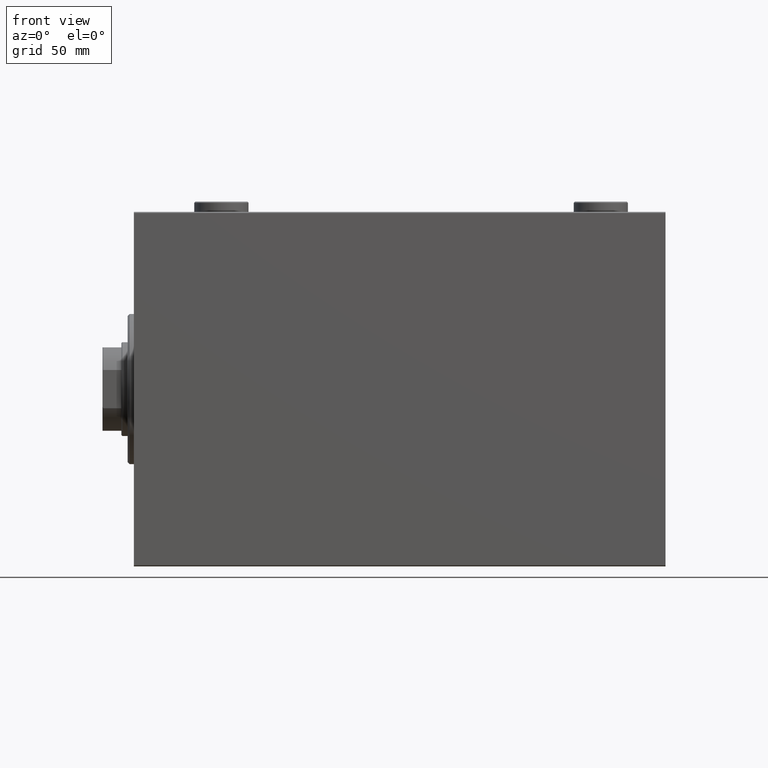
[diagram: clean part render]
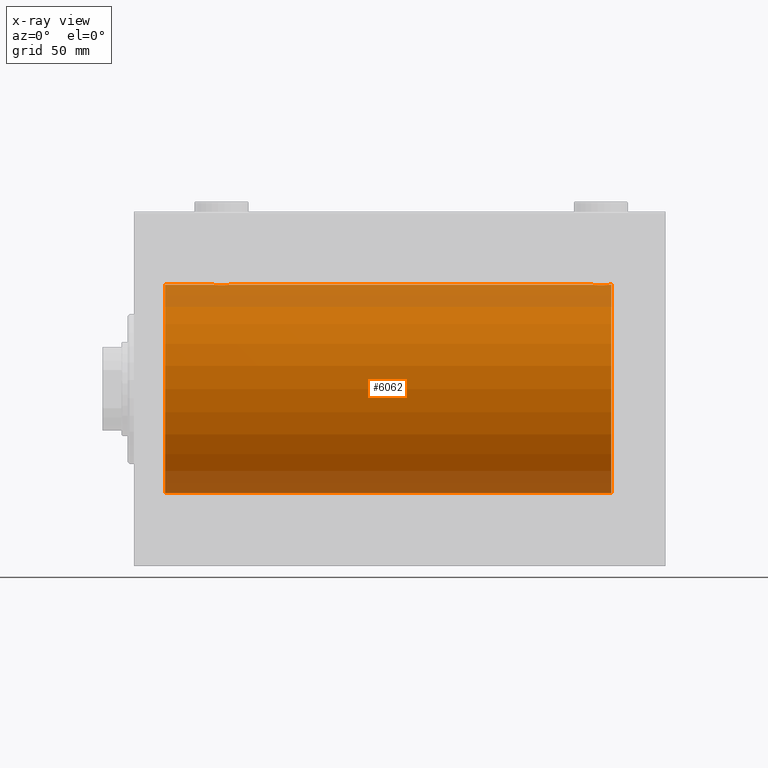
[diagram: x-ray — body ghosted, one internal face saturated and labeled with its STEP entity id]
A machine part, front view, then the same camera in x-ray: the body is ghosted and one INTERNAL B-rep face — a face not visible from any outside direction — is saturated and labeled: STEP entity #6062.
In plain terms, the highlighted cylindrical surface (partial cylindrical patch) has radius 50 mm, axis along (-1, -0, -0).
Its self-contained STEP definition (entity closure, byte-faithful):
#231 = DIRECTION ( 'NONE',  ( -1.000000000000000000, -0.000000000000000000, -0.000000000000000000 ) ) ;
#925 = CARTESIAN_POINT ( 'NONE',  ( 42.55997867695647585, -4.222042462213118519, -49.82145436824654894 ) ) ;
#1079 = ORIENTED_EDGE ( 'NONE', *, *, #37469, .F. ) ;
#1144 = CARTESIAN_POINT ( 'NONE',  ( 38.31397167878049714, -2.133925816755183114, -49.95498245321555686 ) ) ;
#1187 = CARTESIAN_POINT ( 'NONE',  ( 14.99999999999998579, 6.123233995736764507E-15, -50.00000000000000000 ) ) ;
#1197 = CARTESIAN_POINT ( 'NONE',  ( 225.8821704948444733, -3.820681512513395717, 49.85392475515401145 ) ) ;
#1376 = CARTESIAN_POINT ( 'NONE',  ( 38.18160751012128884, -1.886522330773421574, -49.96505190380066352 ) ) ;
#1614 = CARTESIAN_POINT ( 'NONE',  ( 46.25000000000001421, -0.2773743941468467811, -50.00000000000002132 ) ) ;
#1664 = CARTESIAN_POINT ( 'NONE',  ( 228.0307979615534748, -1.375411031076043678, 49.98173289062309976 ) ) ;
#1950 = CARTESIAN_POINT ( 'NONE',  ( 46.25000000000000000, 6.549608351002387256E-15, 50.00000000000000000 ) ) ;
#1978 = CARTESIAN_POINT ( 'NONE',  ( 40.89676703965784554, -4.113647494206489341, 49.83052139214891696 ) ) ;
#2714 = CIRCLE ( 'NONE', #28539, 50.00000000000000000 ) ;
#3127 = CARTESIAN_POINT ( 'NONE',  ( 45.19921927961284069, -2.811461347331105642, 49.92127983148852621 ) ) ;
#3343 = ORIENTED_EDGE ( 'NONE', *, *, #26227, .T. ) ;
#3471 = CARTESIAN_POINT ( 'NONE',  ( 229.0000000000000000, 0.000000000000000000, 50.00000000000000000 ) ) ;
#3490 = AXIS2_PLACEMENT_3D ( 'NONE', #37571, #23243, #37341 ) ;
#3840 = EDGE_CURVE ( 'NONE', #22063, #8125, #2714, .T. ) ;
#3889 = CARTESIAN_POINT ( 'NONE',  ( 222.1178295051556120, -3.820681512513405931, -49.85392475515401145 ) ) ;
#4341 = CARTESIAN_POINT ( 'NONE',  ( 219.7500000000000853, -0.2808785465865917264, -50.00000000000001421 ) ) ;
#4390 = CARTESIAN_POINT ( 'NONE',  ( 41.44591435119853173, -4.222816005855205113, -49.82138837911246299 ) ) ;
#4575 = CARTESIAN_POINT ( 'NONE',  ( 224.2839528702670293, -4.249777379711429326, -49.81906655360197789 ) ) ;
#4624 = CARTESIAN_POINT ( 'NONE',  ( 37.88750298919665482, -1.108337267831493556, -49.98846998601261760 ) ) ;
#4895 = CARTESIAN_POINT ( 'NONE',  ( 227.1992192796128620, -2.811461347331109639, 49.92127983148852621 ) ) ;
#4899 = LINE ( 'NONE', #19474, #23535 ) ;
#4988 = CARTESIAN_POINT ( 'NONE',  ( 43.09737617879037685, -4.115209769591117173, 49.83039196709103180 ) ) ;
#5040 = EDGE_CURVE ( 'NONE', #40193, #40363, #9408, .T. ) ;
#5123 = CARTESIAN_POINT ( 'NONE',  ( 219.7500000000000000, -0.2773743941468553853, 50.00000000000000711 ) ) ;
#5218 = ORIENTED_EDGE ( 'NONE', *, *, #5963, .T. ) ;
#5366 = CARTESIAN_POINT ( 'NONE',  ( 228.1124970108033949, -1.108337267831494222, 49.98846998601261760 ) ) ;
#5453 = CARTESIAN_POINT ( 'NONE',  ( 38.17899418014773971, -1.881229021238131294, 49.96525240872482954 ) ) ;
#5590 = CARTESIAN_POINT ( 'NONE',  ( 221.8686360055384910, -3.687400765141541026, 49.86408552998298660 ) ) ;
#5689 = VERTEX_POINT ( 'NONE', #9537 ) ;
#5833 = CARTESIAN_POINT ( 'NONE',  ( 228.2500000000000568, -0.2808785465865649145, 50.00000000000001421 ) ) ;
#5963 = EDGE_CURVE ( 'NONE', #22063, #40193, #31375, .T. ) ;
#6062 = ADVANCED_FACE ( 'NONE', ( #22782 ), #29933, .F. ) ;
#6098 = VERTEX_POINT ( 'NONE', #33874 ) ;
#6599 = CARTESIAN_POINT ( 'NONE',  ( 45.68602832121950286, -2.133925816755181337, 49.95498245321556396 ) ) ;
#6908 = ORIENTED_EDGE ( 'NONE', *, *, #8350, .T. ) ;
#7220 = EDGE_LOOP ( 'NONE', ( #36405, #5218, #25693, #13240, #3343, #6908, #18936, #22625, #15485, #17308, #34800, #1079 ) ) ;
#7602 = CARTESIAN_POINT ( 'NONE',  ( 219.7500000000000284, -2.307503314381865081E-14, -50.00000000000000000 ) ) ;
#7819 = CARTESIAN_POINT ( 'NONE',  ( 227.8210058198523598, -1.881229021238126409, -49.96525240872482954 ) ) ;
#8103 = CARTESIAN_POINT ( 'NONE',  ( 38.62480015918033871, -2.597781786597466613, -49.93300953359121763 ) ) ;
#8125 = VERTEX_POINT ( 'NONE', #23363 ) ;
#8248 = CARTESIAN_POINT ( 'NONE',  ( 41.71604712973302043, -4.249777379711411562, 49.81906655360197789 ) ) ;
#8284 = CARTESIAN_POINT ( 'NONE',  ( 222.6328935244542890, -4.033756670430873825, -49.83713703490974467 ) ) ;
#8330 = CARTESIAN_POINT ( 'NONE',  ( 37.75000000000000711, -6.867186738287116403E-15, -50.00000000000000000 ) ) ;
#8350 = EDGE_CURVE ( 'NONE', #5689, #29761, #16791, .T. ) ;
#8550 = CARTESIAN_POINT ( 'NONE',  ( 43.37333436579037738, -4.031616700143179521, -49.83731072121799599 ) ) ;
#8604 = CARTESIAN_POINT ( 'NONE',  ( 222.8967670396579024, -4.113647494206499111, 49.83052139214891696 ) ) ;
#8940 = CARTESIAN_POINT ( 'NONE',  ( 219.7500000000000284, -2.480257572105383217E-23, 50.00000000000000000 ) ) ;
#9408 = B_SPLINE_CURVE_WITH_KNOTS ( 'NONE', 3,
 ( #43398, #25608, #11749, #18907, #32998, #7819, #11069, #39033, #15215, #39938, #25844, #25167, #29540, #21469, #28850, #42948, #4575, #35563, #11295, #29083, #8284, #3889, #22384, #36017, #36475, #18010, #32094, #14538, #28622, #42718, #18229, #39262, #4341, #7602 ),
 .UNSPECIFIED., .F., .F.,
 ( 4, 2, 2, 2, 2, 2, 2, 2, 2, 2, 2, 2, 2, 2, 2, 2, 4 ),
 ( 0.01329343152928757002, 0.01412407817529635727, 0.01495472482130514279, 0.01578537146731393004, 0.01661601811332271555, 0.01744666475933150107, 0.01827731140534029006, 0.01910795805134907557, 0.01993860469735786456, 0.02076925134336665008, 0.02159989798937543559, 0.02243054463538422111, 0.02326119128139301009, 0.02409183792740179561, 0.02492248457341058460, 0.02575313121941937011, 0.02658377786542815563 ),
 .UNSPECIFIED. ) ;
#9537 = CARTESIAN_POINT ( 'NONE',  ( 37.75000000000000711, -6.867186738287116403E-15, -50.00000000000000000 ) ) ;
#9935 = CARTESIAN_POINT ( 'NONE',  ( 228.2500000000000284, 6.123233970934102801E-15, -50.00000000000000000 ) ) ;
#10590 = DIRECTION ( 'NONE',  ( -1.000000000000000000, -0.000000000000000000, -0.000000000000000000 ) ) ;
#11069 = CARTESIAN_POINT ( 'NONE',  ( 227.6893715567939580, -2.128188802142370495, -49.95522967821975158 ) ) ;
#11295 = CARTESIAN_POINT ( 'NONE',  ( 223.4459143511985246, -4.222816005855230870, -49.82138837911247009 ) ) ;
#11340 = CARTESIAN_POINT ( 'NONE',  ( 45.20303561951989479, -2.807099414226270628, -49.92152599098506016 ) ) ;
#11686 = VECTOR ( 'NONE', #38504, 1000.000000000000000 ) ;
#11749 = CARTESIAN_POINT ( 'NONE',  ( 228.2231075279900381, -0.5531336717329033981, -49.99769193709643389 ) ) ;
#11750 = CARTESIAN_POINT ( 'NONE',  ( 37.75000000000000711, -2.480809774739037926E-23, 50.00000000000000000 ) ) ;
#11797 = CARTESIAN_POINT ( 'NONE',  ( 46.03272642097309841, -1.369753890039645761, -49.98188917176552337 ) ) ;
#12298 = CARTESIAN_POINT ( 'NONE',  ( 219.9672735790269087, -1.369753890039649091, 49.98188917176553048 ) ) ;
#12379 = VECTOR ( 'NONE', #231, 1000.000000000000000 ) ;
#12534 = CARTESIAN_POINT ( 'NONE',  ( 224.2772492703792011, -4.250219976861659532, 49.81902879621013369 ) ) ;
#12764 = CARTESIAN_POINT ( 'NONE',  ( 226.1263164487508277, -3.690299572754730306, 49.86386974736159061 ) ) ;
#13240 = ORIENTED_EDGE ( 'NONE', *, *, #42358, .T. ) ;
#13765 = CARTESIAN_POINT ( 'NONE',  ( 45.37519984081966840, -2.597781786597467057, 49.93300953359123184 ) ) ;
#13850 = DIRECTION ( 'NONE',  ( -1.000000000000000000, -0.000000000000000000, -0.000000000000000000 ) ) ;
#13948 = VERTEX_POINT ( 'NONE', #21550 ) ;
#14538 = CARTESIAN_POINT ( 'NONE',  ( 220.3139716787804332, -2.133925816755204874, -49.95498245321555686 ) ) ;
#14818 = CARTESIAN_POINT ( 'NONE',  ( 46.25000000000000000, 6.123233970928580774E-15, -50.00000000000000000 ) ) ;
#15048 = CARTESIAN_POINT ( 'NONE',  ( 40.90262382120963736, -4.115209769591108291, -49.83039196709104601 ) ) ;
#15215 = CARTESIAN_POINT ( 'NONE',  ( 227.2030356195199658, -2.807099414226289280, -49.92152599098506727 ) ) ;
#15265 = CARTESIAN_POINT ( 'NONE',  ( 44.59312720885954917, -3.378657745070622997, -49.88595615988429444 ) ) ;
#15414 = CARTESIAN_POINT ( 'NONE',  ( 38.31062844320614857, -2.128188802142370495, 49.95522967821975868 ) ) ;
#15485 = ORIENTED_EDGE ( 'NONE', *, *, #16748, .T. ) ;
#15783 = CARTESIAN_POINT ( 'NONE',  ( 228.2224263552078014, -0.5587117664567151643, 49.99763378604802000 ) ) ;
#16008 = CARTESIAN_POINT ( 'NONE',  ( 223.7160471297330560, -4.249777379711418668, 49.81906655360197789 ) ) ;
#16245 = CARTESIAN_POINT ( 'NONE',  ( 219.7768924720100472, -0.5531336717329080610, 49.99769193709643389 ) ) ;
#16748 = EDGE_CURVE ( 'NONE', #43759, #26779, #44612, .T. ) ;
#16791 = LINE ( 'NONE', #26948, #11686 ) ;
#17308 = ORIENTED_EDGE ( 'NONE', *, *, #39845, .F. ) ;
#17541 = VECTOR ( 'NONE', #38991, 1000.000000000000000 ) ;
#17953 = DIRECTION ( 'NONE',  ( 0.000000000000000000, 0.000000000000000000, 1.000000000000000000 ) ) ;
#18010 = CARTESIAN_POINT ( 'NONE',  ( 220.8007807203871948, -2.811461347331129179, -49.92127983148851200 ) ) ;
#18229 = CARTESIAN_POINT ( 'NONE',  ( 219.8875029891967188, -1.108337267831515982, -49.98846998601261760 ) ) ;
#18508 = CARTESIAN_POINT ( 'NONE',  ( 39.41179785323800644, -3.382416624899780899, -49.88570010427955737 ) ) ;
#18734 = CARTESIAN_POINT ( 'NONE',  ( 39.87368355124921493, -3.690299572754719648, -49.86386974736159061 ) ) ;
#18867 = CARTESIAN_POINT ( 'NONE',  ( 37.75000000000000711, -2.480809774739037926E-23, 50.00000000000000000 ) ) ;
#18907 = CARTESIAN_POINT ( 'NONE',  ( 228.1143191330600359, -1.101350136471743069, -49.98862054280448319 ) ) ;
#18936 = ORIENTED_EDGE ( 'NONE', *, *, #33656, .T. ) ;
#19104 = CARTESIAN_POINT ( 'NONE',  ( 38.79696438048009099, -2.807099414226282175, 49.92152599098506727 ) ) ;
#19242 = CARTESIAN_POINT ( 'NONE',  ( 219.8856808669399356, -1.101350136471747510, 49.98862054280448319 ) ) ;
#19469 = CARTESIAN_POINT ( 'NONE',  ( 228.2500000000000284, 3.884128014896634599E-15, 50.00000000000000000 ) ) ;
#19474 = CARTESIAN_POINT ( 'NONE',  ( 229.0000000000000000, 0.000000000000000000, 50.00000000000000000 ) ) ;
#19559 = CARTESIAN_POINT ( 'NONE',  ( 39.18846933484581996, -3.199146701881677934, 49.89793607725461300 ) ) ;
#19934 = CARTESIAN_POINT ( 'NONE',  ( 220.7969643804801194, -2.807099414226281286, 49.92152599098507437 ) ) ;
#20471 = CARTESIAN_POINT ( 'NONE',  ( 44.80697831839310652, -3.203153387937319962, 49.89767833571683298 ) ) ;
#20701 = CARTESIAN_POINT ( 'NONE',  ( 46.03079796155343217, -1.375411031076034352, 49.98173289062309976 ) ) ;
#21469 = CARTESIAN_POINT ( 'NONE',  ( 225.3733343657904697, -4.031616700143205279, -49.83731072121799599 ) ) ;
#21550 = CARTESIAN_POINT ( 'NONE',  ( 46.25000000000000000, 6.123233970928580774E-15, -50.00000000000000000 ) ) ;
#21862 = CARTESIAN_POINT ( 'NONE',  ( 14.99999999999998579, 0.000000000000000000, 0.000000000000000000 ) ) ;
#21970 = CARTESIAN_POINT ( 'NONE',  ( 42.28395287026698668, -4.249777379711400016, -49.81906655360198499 ) ) ;
#22063 = VERTEX_POINT ( 'NONE', #25656 ) ;
#22384 = CARTESIAN_POINT ( 'NONE',  ( 221.8736835512492576, -3.690299572754756952, -49.86386974736159061 ) ) ;
#22625 = ORIENTED_EDGE ( 'NONE', *, *, #37789, .F. ) ;
#22704 = CARTESIAN_POINT ( 'NONE',  ( 225.0973761787904550, -4.115209769591120725, 49.83039196709102470 ) ) ;
#22782 = FACE_OUTER_BOUND ( 'NONE', #7220, .T. ) ;
#22936 = CARTESIAN_POINT ( 'NONE',  ( 221.4068727911404721, -3.378657745070632767, 49.88595615988430154 ) ) ;
#23243 = DIRECTION ( 'NONE',  ( -1.000000000000000000, -0.000000000000000000, -0.000000000000000000 ) ) ;
#23254 = CARTESIAN_POINT ( 'NONE',  ( 46.25000000000004974, -0.2808785465865676345, 50.00000000000002842 ) ) ;
#23363 = CARTESIAN_POINT ( 'NONE',  ( 229.0000000000000000, 0.000000000000000000, 50.00000000000000000 ) ) ;
#23473 = CIRCLE ( 'NONE', #38226, 50.00000000000000000 ) ;
#23535 = VECTOR ( 'NONE', #43509, 1000.000000000000000 ) ;
#25167 = CARTESIAN_POINT ( 'NONE',  ( 226.1313639944615659, -3.687400765141549019, -49.86408552998298660 ) ) ;
#25214 = CARTESIAN_POINT ( 'NONE',  ( 46.22310752799000255, -0.5531336717328981800, -49.99769193709643389 ) ) ;
#25430 = CARTESIAN_POINT ( 'NONE',  ( 44.81153066515419425, -3.199146701881665500, -49.89793607725460589 ) ) ;
#25608 = CARTESIAN_POINT ( 'NONE',  ( 228.2500000000000568, -0.2773743941468493901, -50.00000000000000711 ) ) ;
#25612 = CARTESIAN_POINT ( 'NONE',  ( 219.7500000000000284, -2.307503314381865081E-14, -50.00000000000000000 ) ) ;
#25656 = CARTESIAN_POINT ( 'NONE',  ( 229.0000000000000000, 6.123233995736764507E-15, -50.00000000000000000 ) ) ;
#25657 = CARTESIAN_POINT ( 'NONE',  ( 44.13136399446154456, -3.687400765141527259, -49.86408552998295818 ) ) ;
#25693 = ORIENTED_EDGE ( 'NONE', *, *, #5040, .T. ) ;
#25805 = CARTESIAN_POINT ( 'NONE',  ( 37.96727357902688738, -1.369753890039657085, 49.98188917176553048 ) ) ;
#25844 = CARTESIAN_POINT ( 'NONE',  ( 226.5931272088596415, -3.378657745070642981, -49.88595615988430154 ) ) ;
#25893 = CARTESIAN_POINT ( 'NONE',  ( 37.96920203844657493, -1.375411031076047230, -49.98173289062308555 ) ) ;
#26114 = CARTESIAN_POINT ( 'NONE',  ( 40.11782950515556934, -3.820681512513380618, -49.85392475515399724 ) ) ;
#26227 = EDGE_CURVE ( 'NONE', #13948, #5689, #28595, .T. ) ;
#26396 = CARTESIAN_POINT ( 'NONE',  ( 220.6211828273626452, -2.593114840406131716, 49.93325460257641168 ) ) ;
#26779 = VERTEX_POINT ( 'NONE', #1950 ) ;
#26855 = CARTESIAN_POINT ( 'NONE',  ( 227.6860283212195668, -2.133925816755189775, 49.95498245321557818 ) ) ;
#26868 = CARTESIAN_POINT ( 'NONE',  ( 14.99999999999998579, 0.000000000000000000, 50.00000000000000000 ) ) ;
#26948 = CARTESIAN_POINT ( 'NONE',  ( 229.0000000000000000, 6.123233995736764507E-15, -50.00000000000000000 ) ) ;
#27413 = CARTESIAN_POINT ( 'NONE',  ( 44.58820214676201488, -3.382416624899783120, 49.88570010427955737 ) ) ;
#27708 = CARTESIAN_POINT ( 'NONE',  ( 229.0000000000000000, 0.000000000000000000, 50.00000000000000000 ) ) ;
#27891 = VECTOR ( 'NONE', #13850, 1000.000000000000000 ) ;
#27963 = VERTEX_POINT ( 'NONE', #26868 ) ;
#28135 = CARTESIAN_POINT ( 'NONE',  ( 229.0000000000000000, 6.123233995736764507E-15, -50.00000000000000000 ) ) ;
#28539 = AXIS2_PLACEMENT_3D ( 'NONE', #30334, #36360, #44186 ) ;
#28595 = B_SPLINE_CURVE_WITH_KNOTS ( 'NONE', 3,
 ( #14818, #1614, #25214, #35836, #11797, #39307, #28905, #42994, #11340, #25430, #15265, #25657, #39526, #8550, #32601, #925, #21970, #36066, #4390, #15048, #43450, #26114, #18734, #18508, #29129, #33048, #8103, #1144, #1376, #25893, #4624, #29352, #39990, #8330 ),
 .UNSPECIFIED., .F., .F.,
 ( 4, 2, 2, 2, 2, 2, 2, 2, 2, 2, 2, 2, 2, 2, 2, 2, 4 ),
 ( 0.01329343152928757002, 0.01412407817529635554, 0.01495472482130513932, 0.01578537146731392310, 0.01661601811332270862, 0.01744666475933149413, 0.01827731140534027965, 0.01910795805134906516, 0.01993860469735784721, 0.02076925134336663273, 0.02159989798937541824, 0.02243054463538420029, 0.02326119128139298581, 0.02409183792740176785, 0.02492248457341054990, 0.02575313121941933542, 0.02658377786542811747 ),
 .UNSPECIFIED. ) ;
#28622 = CARTESIAN_POINT ( 'NONE',  ( 220.1816075101212959, -1.886522330773437339, -49.96505190380065642 ) ) ;
#28850 = CARTESIAN_POINT ( 'NONE',  ( 225.1032329603422113, -4.113647494206503552, -49.83052139214891696 ) ) ;
#28905 = CARTESIAN_POINT ( 'NONE',  ( 45.68937155679385143, -2.128188802142360281, -49.95522967821973737 ) ) ;
#29083 = CARTESIAN_POINT ( 'NONE',  ( 222.9026238212096587, -4.115209769591131383, -49.83039196709102470 ) ) ;
#29129 = CARTESIAN_POINT ( 'NONE',  ( 39.19302168160691480, -3.203153387937326624, -49.89767833571684008 ) ) ;
#29268 = CARTESIAN_POINT ( 'NONE',  ( 37.75000000000000711, -0.2773743941468536089, 50.00000000000000000 ) ) ;
#29352 = CARTESIAN_POINT ( 'NONE',  ( 37.77757364479218438, -0.5587117664567184949, -49.99763378604801289 ) ) ;
#29502 = CARTESIAN_POINT ( 'NONE',  ( 42.27724927037918690, -4.250219976861652427, 49.81902879621014080 ) ) ;
#29540 = CARTESIAN_POINT ( 'NONE',  ( 225.8874473939280563, -3.818052230167736205, -49.85412671291930309 ) ) ;
#29641 = CARTESIAN_POINT ( 'NONE',  ( 222.6266656342096724, -4.031616700143203502, 49.83731072121799599 ) ) ;
#29725 = CARTESIAN_POINT ( 'NONE',  ( 39.40687279114045083, -3.378657745070634544, 49.88595615988430154 ) ) ;
#29761 = VERTEX_POINT ( 'NONE', #1187 ) ;
#29857 = CARTESIAN_POINT ( 'NONE',  ( 226.5882021467620859, -3.382416624899788893, 49.88570010427955737 ) ) ;
#29933 = CYLINDRICAL_SURFACE ( 'NONE', #3490, 50.00000000000000000 ) ;
#30180 = CARTESIAN_POINT ( 'NONE',  ( 41.44002132304352415, -4.222042462213131842, 49.82145436824653473 ) ) ;
#30326 = CARTESIAN_POINT ( 'NONE',  ( 220.3106284432061841, -2.128188802142365166, 49.95522967821975158 ) ) ;
#30334 = CARTESIAN_POINT ( 'NONE',  ( 229.0000000000000000, 0.000000000000000000, 0.000000000000000000 ) ) ;
#30645 = CARTESIAN_POINT ( 'NONE',  ( 46.11249701080335228, -1.108337267831486228, 49.98846998601261760 ) ) ;
#31375 = LINE ( 'NONE', #28135, #17541 ) ;
#31725 = VERTEX_POINT ( 'NONE', #8940 ) ;
#32094 = CARTESIAN_POINT ( 'NONE',  ( 220.6248001591803813, -2.597781786597489706, -49.93300953359122474 ) ) ;
#32285 = LINE ( 'NONE', #39004, #39820 ) ;
#32601 = CARTESIAN_POINT ( 'NONE',  ( 43.10323296034216156, -4.113647494206477795, -49.83052139214893117 ) ) ;
#32998 = CARTESIAN_POINT ( 'NONE',  ( 228.0327264209731766, -1.369753890039650646, -49.98188917176553048 ) ) ;
#33048 = CARTESIAN_POINT ( 'NONE',  ( 38.80078072038718062, -2.811461347331114524, -49.92127983148851200 ) ) ;
#33199 = CARTESIAN_POINT ( 'NONE',  ( 43.36710647554575360, -4.033756670430853397, 49.83713703490974467 ) ) ;
#33340 = CARTESIAN_POINT ( 'NONE',  ( 227.3751998408197039, -2.597781786597475495, 49.93300953359122474 ) ) ;
#33425 = CARTESIAN_POINT ( 'NONE',  ( 37.88568086693990722, -1.101350136471746843, 49.98862054280448319 ) ) ;
#33563 = CARTESIAN_POINT ( 'NONE',  ( 220.1789941801477539, -1.881229021238122856, 49.96525240872482954 ) ) ;
#33647 = CARTESIAN_POINT ( 'NONE',  ( 40.62666563420964394, -4.031616700143194620, 49.83731072121800310 ) ) ;
#33656 = EDGE_CURVE ( 'NONE', #29761, #27963, #23473, .T. ) ;
#33874 = CARTESIAN_POINT ( 'NONE',  ( 228.2500000000000284, 3.884128014896634599E-15, 50.00000000000000000 ) ) ;
#34339 = CARTESIAN_POINT ( 'NONE',  ( 45.81839248987871116, -1.886522330773410250, 49.96505190380065642 ) ) ;
#34564 = CARTESIAN_POINT ( 'NONE',  ( 46.25000000000000000, 6.549608351002387256E-15, 50.00000000000000000 ) ) ;
#34800 = ORIENTED_EDGE ( 'NONE', *, *, #38666, .T. ) ;
#35281 = DIRECTION ( 'NONE',  ( -1.000000000000000000, 0.000000000000000000, 0.000000000000000000 ) ) ;
#35563 = CARTESIAN_POINT ( 'NONE',  ( 223.7227507296208842, -4.250219976861668414, -49.81902879621013369 ) ) ;
#35836 = CARTESIAN_POINT ( 'NONE',  ( 46.11431913306008568, -1.101350136471737295, -49.98862054280449030 ) ) ;
#36017 = CARTESIAN_POINT ( 'NONE',  ( 221.4117978532380562, -3.382416624899818647, -49.88570010427955737 ) ) ;
#36066 = CARTESIAN_POINT ( 'NONE',  ( 41.72275072962081310, -4.250219976861640880, -49.81902879621016211 ) ) ;
#36360 = DIRECTION ( 'NONE',  ( -1.000000000000000000, 0.000000000000000000, 0.000000000000000000 ) ) ;
#36405 = ORIENTED_EDGE ( 'NONE', *, *, #3840, .F. ) ;
#36475 = CARTESIAN_POINT ( 'NONE',  ( 221.1930216816069503, -3.203153387937343499, -49.89767833571684008 ) ) ;
#36572 = CARTESIAN_POINT ( 'NONE',  ( 226.8069783183931349, -3.203153387937327512, 49.89767833571684008 ) ) ;
#36661 = CARTESIAN_POINT ( 'NONE',  ( 42.55408564880149669, -4.222816005855215771, 49.82138837911247009 ) ) ;
#36803 = CARTESIAN_POINT ( 'NONE',  ( 224.5540856488015322, -4.222816005855221100, 49.82138837911247009 ) ) ;
#37033 = CARTESIAN_POINT ( 'NONE',  ( 221.1884693348458200, -3.199146701881678823, 49.89793607725462010 ) ) ;
#37341 = DIRECTION ( 'NONE',  ( 0.000000000000000000, 0.000000000000000000, 1.000000000000000000 ) ) ;
#37352 = CARTESIAN_POINT ( 'NONE',  ( 46.22242635520782272, -0.5587117664567085029, 49.99763378604804132 ) ) ;
#37469 = EDGE_CURVE ( 'NONE', #8125, #6098, #42078, .T. ) ;
#37571 = CARTESIAN_POINT ( 'NONE',  ( 229.0000000000000000, 0.000000000000000000, 0.000000000000000000 ) ) ;
#37789 = EDGE_CURVE ( 'NONE', #43759, #27963, #38348, .T. ) ;
#38226 = AXIS2_PLACEMENT_3D ( 'NONE', #21862, #35281, #17953 ) ;
#38348 = LINE ( 'NONE', #27708, #27891 ) ;
#38504 = DIRECTION ( 'NONE',  ( -1.000000000000000000, -0.000000000000000000, -0.000000000000000000 ) ) ;
#38666 = EDGE_CURVE ( 'NONE', #31725, #6098, #42962, .T. ) ;
#38991 = DIRECTION ( 'NONE',  ( -1.000000000000000000, -0.000000000000000000, -0.000000000000000000 ) ) ;
#39004 = CARTESIAN_POINT ( 'NONE',  ( 229.0000000000000000, 6.123233995736764507E-15, -50.00000000000000000 ) ) ;
#39033 = CARTESIAN_POINT ( 'NONE',  ( 227.3788171726373264, -2.593114840406136157, -49.93325460257641879 ) ) ;
#39262 = CARTESIAN_POINT ( 'NONE',  ( 219.7775736447922270, -0.5587117664567382569, -49.99763378604802710 ) ) ;
#39307 = CARTESIAN_POINT ( 'NONE',  ( 45.82100581985226029, -1.881229021238118859, -49.96525240872481533 ) ) ;
#39526 = CARTESIAN_POINT ( 'NONE',  ( 43.88744739392798522, -3.818052230167713113, -49.85412671291930309 ) ) ;
#39820 = VECTOR ( 'NONE', #10590, 1000.000000000000000 ) ;
#39845 = EDGE_CURVE ( 'NONE', #31725, #26779, #4899, .T. ) ;
#39900 = CARTESIAN_POINT ( 'NONE',  ( 38.62118282736264518, -2.593114840406135713, 49.93325460257641168 ) ) ;
#39938 = CARTESIAN_POINT ( 'NONE',  ( 226.8115306651542085, -3.199146701881684596, -49.89793607725460589 ) ) ;
#39990 = CARTESIAN_POINT ( 'NONE',  ( 37.75000000000000711, -0.2808785465865692443, -50.00000000000001421 ) ) ;
#40134 = CARTESIAN_POINT ( 'NONE',  ( 40.11255260607201478, -3.818052230167726879, 49.85412671291930309 ) ) ;
#40193 = VERTEX_POINT ( 'NONE', #9935 ) ;
#40363 = VERTEX_POINT ( 'NONE', #25612 ) ;
#40492 = CARTESIAN_POINT ( 'NONE',  ( 222.1125526060720290, -3.818052230167736649, 49.85412671291929598 ) ) ;
#40724 = CARTESIAN_POINT ( 'NONE',  ( 225.3671064755457678, -4.033756670430863167, 49.83713703490974467 ) ) ;
#40950 = CARTESIAN_POINT ( 'NONE',  ( 227.8183924898787609, -1.886522330773421574, 49.96505190380066352 ) ) ;
#41725 = CARTESIAN_POINT ( 'NONE',  ( 43.88217049484444487, -3.820681512513385059, 49.85392475515401145 ) ) ;
#42078 = LINE ( 'NONE', #3471, #12379 ) ;
#42358 = EDGE_CURVE ( 'NONE', #40363, #13948, #32285, .T. ) ;
#42718 = CARTESIAN_POINT ( 'NONE',  ( 219.9692020384465820, -1.375411031076060331, -49.98173289062309976 ) ) ;
#42948 = CARTESIAN_POINT ( 'NONE',  ( 224.5599786769565469, -4.222042462213146941, -49.82145436824653473 ) ) ;
#42962 = B_SPLINE_CURVE_WITH_KNOTS ( 'NONE', 3,
 ( #44178, #5123, #16245, #19242, #12298, #33563, #30326, #26396, #19934, #37033, #22936, #5590, #40492, #29641, #8604, #44413, #16008, #12534, #36803, #22704, #40724, #1197, #12764, #29857, #36572, #4895, #33340, #26855, #40950, #1664, #5366, #15783, #5833, #19469 ),
 .UNSPECIFIED., .F., .F.,
 ( 4, 2, 2, 2, 2, 2, 2, 2, 2, 2, 2, 2, 2, 2, 2, 2, 4 ),
 ( 0.01329343152928753879, 0.01412407817529632258, 0.01495472482130510636, 0.01578537146731389187, 0.01661601811332267392, 0.01744666475933145944, 0.01827731140534024495, 0.01910795805134903047, 0.01993860469735781252, 0.02076925134336659456, 0.02159989798937538008, 0.02243054463538416560, 0.02326119128139295111, 0.02409183792740173316, 0.02492248457341051868, 0.02575313121941930072, 0.02658377786542808624 ),
 .UNSPECIFIED. ) ;
#42994 = CARTESIAN_POINT ( 'NONE',  ( 45.37881717263736192, -2.593114840406123722, -49.93325460257639037 ) ) ;
#43363 = CARTESIAN_POINT ( 'NONE',  ( 37.77689247201000455, -0.5531336717329072838, 49.99769193709643389 ) ) ;
#43398 = CARTESIAN_POINT ( 'NONE',  ( 228.2500000000000284, 6.123233970934102801E-15, -50.00000000000000000 ) ) ;
#43450 = CARTESIAN_POINT ( 'NONE',  ( 40.63289352445426772, -4.033756670430847180, -49.83713703490975888 ) ) ;
#43509 = DIRECTION ( 'NONE',  ( -1.000000000000000000, -0.000000000000000000, -0.000000000000000000 ) ) ;
#43759 = VERTEX_POINT ( 'NONE', #11750 ) ;
#43812 = CARTESIAN_POINT ( 'NONE',  ( 39.86863600553845544, -3.687400765141540138, 49.86408552998298660 ) ) ;
#44178 = CARTESIAN_POINT ( 'NONE',  ( 219.7500000000000284, -2.480257572105383217E-23, 50.00000000000000000 ) ) ;
#44186 = DIRECTION ( 'NONE',  ( 0.000000000000000000, 0.000000000000000000, 1.000000000000000000 ) ) ;
#44413 = CARTESIAN_POINT ( 'NONE',  ( 223.4400213230435668, -4.222042462213138947, 49.82145436824653473 ) ) ;
#44612 = B_SPLINE_CURVE_WITH_KNOTS ( 'NONE', 3,
 ( #18867, #29268, #43363, #33425, #25805, #5453, #15414, #39900, #19104, #19559, #29725, #43812, #40134, #33647, #1978, #30180, #8248, #29502, #36661, #4988, #33199, #41725, #44957, #27413, #20471, #3127, #13765, #6599, #34339, #20701, #30645, #37352, #23254, #34564 ),
 .UNSPECIFIED., .F., .F.,
 ( 4, 2, 2, 2, 2, 2, 2, 2, 2, 2, 2, 2, 2, 2, 2, 2, 4 ),
 ( 0.01329343152928758910, 0.01412407817529637635, 0.01495472482130516534, 0.01578537146731395432, 0.01661601811332274331, 0.01744666475933152883, 0.01827731140534032128, 0.01910795805134910680, 0.01993860469735789578, 0.02076925134336668477, 0.02159989798937547029, 0.02243054463538425927, 0.02326119128139304826, 0.02409183792740183377, 0.02492248457341062276, 0.02575313121941941175, 0.02658377786542820073 ),
 .UNSPECIFIED. ) ;
#44957 = CARTESIAN_POINT ( 'NONE',  ( 44.12631644875080639, -3.690299572754724977, 49.86386974736159772 ) ) ;